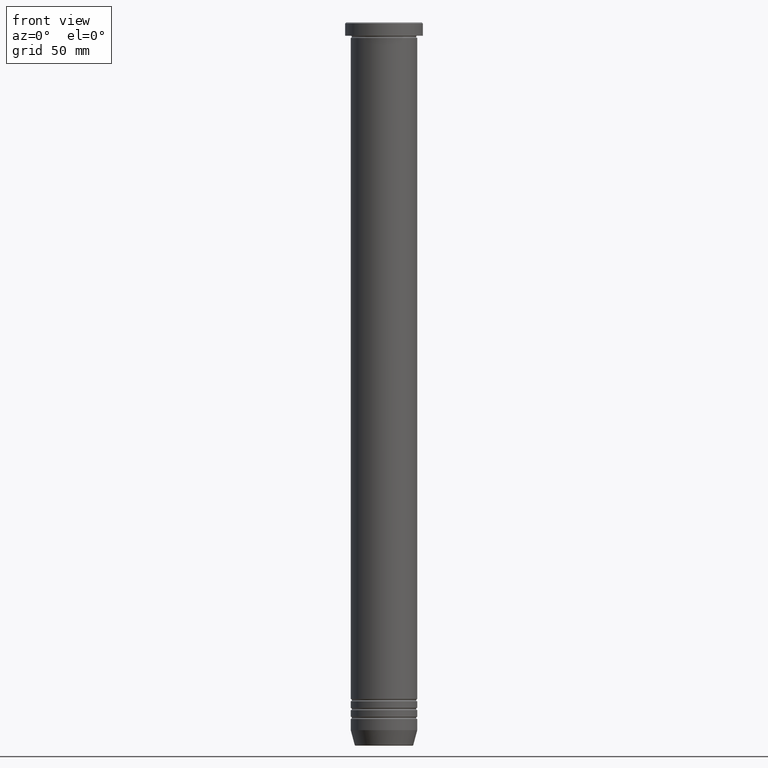
[diagram: clean part render]
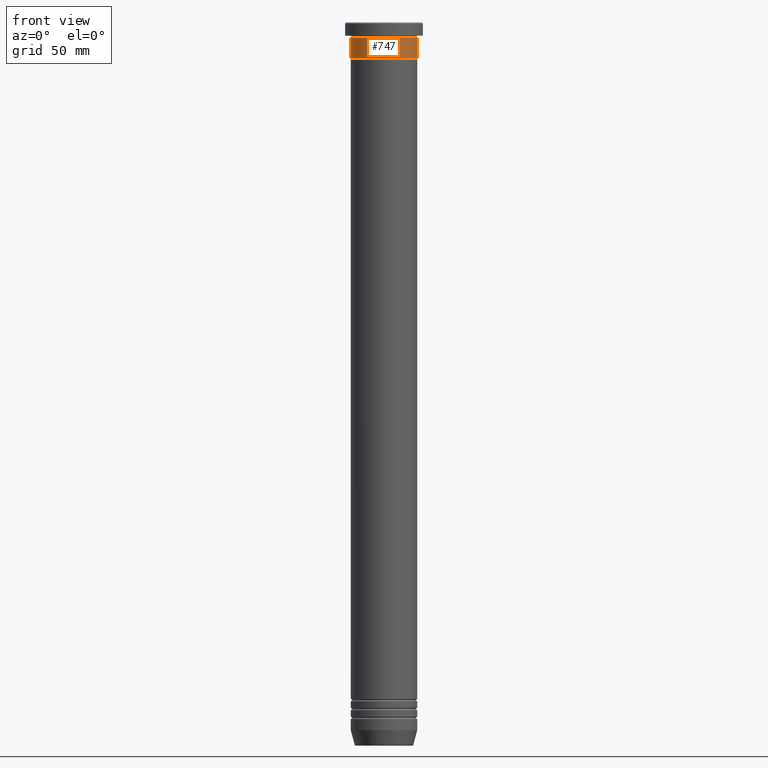
[diagram: same view with one face highlighted and labeled with its STEP entity id]
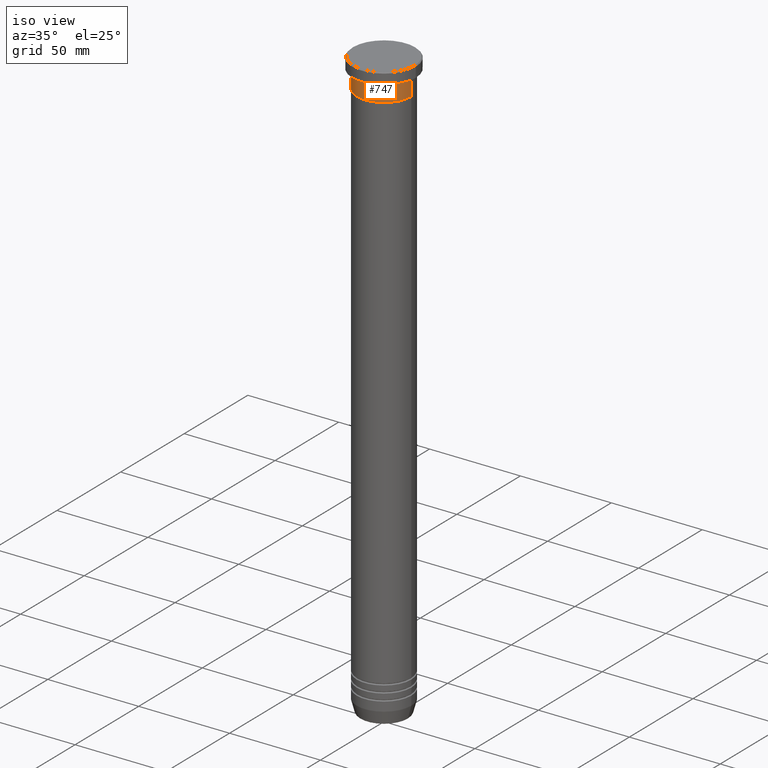
[diagram: same view with one face highlighted and labeled with its STEP entity id]
A machine part, front view. The second image highlights one B-rep face of the part: STEP entity #747.
A second angle (iso view) of the same face is appended — the face is thin or edge-on in the first view.
In plain terms, the highlighted cylindrical surface (edge-blend (fillet) strip) has radius 15 mm, axis along (-0, -0, 1).
Its self-contained STEP definition (entity closure, byte-faithful):
#1 = FACE_OUTER_BOUND ( 'NONE', #1039, .T. ) ;
#42 = DIRECTION ( 'NONE',  ( -0.000000000000000000, -0.000000000000000000, 1.000000000000000000 ) ) ;
#59 = LINE ( 'NONE', #837, #1145 ) ;
#81 = CIRCLE ( 'NONE', #356, 15.00000000000000000 ) ;
#129 = DIRECTION ( 'NONE',  ( -0.000000000000000000, -0.000000000000000000, 1.000000000000000000 ) ) ;
#147 = CARTESIAN_POINT ( 'NONE',  ( -15.00000000000000000, 1.836970198721029589E-15, -6.999999999999999112 ) ) ;
#160 = LINE ( 'NONE', #758, #372 ) ;
#247 = VERTEX_POINT ( 'NONE', #744 ) ;
#251 = CYLINDRICAL_SURFACE ( 'NONE', #866, 15.00000000000000000 ) ;
#264 = DIRECTION ( 'NONE',  ( -0.000000000000000000, -0.000000000000000000, 1.000000000000000000 ) ) ;
#356 = AXIS2_PLACEMENT_3D ( 'NONE', #634, #621, #714 ) ;
#372 = VECTOR ( 'NONE', #669, 1000.000000000000000 ) ;
#439 = DIRECTION ( 'NONE',  ( 1.000000000000000000, 0.000000000000000000, 0.000000000000000000 ) ) ;
#454 = EDGE_CURVE ( 'NONE', #576, #743, #160, .T. ) ;
#456 = CARTESIAN_POINT ( 'NONE',  ( 0.000000000000000000, 0.000000000000000000, 0.000000000000000000 ) ) ;
#548 = CARTESIAN_POINT ( 'NONE',  ( 15.00000000000000000, 0.000000000000000000, -16.00000000000000000 ) ) ;
#576 = VERTEX_POINT ( 'NONE', #548 ) ;
#605 = VERTEX_POINT ( 'NONE', #147 ) ;
#607 = EDGE_CURVE ( 'NONE', #247, #605, #59, .T. ) ;
#621 = DIRECTION ( 'NONE',  ( -0.000000000000000000, -0.000000000000000000, 1.000000000000000000 ) ) ;
#634 = CARTESIAN_POINT ( 'NONE',  ( 0.000000000000000000, 0.000000000000000000, -6.999999999999999112 ) ) ;
#655 = AXIS2_PLACEMENT_3D ( 'NONE', #936, #129, #736 ) ;
#669 = DIRECTION ( 'NONE',  ( -0.000000000000000000, -0.000000000000000000, 1.000000000000000000 ) ) ;
#683 = ORIENTED_EDGE ( 'NONE', *, *, #607, .F. ) ;
#714 = DIRECTION ( 'NONE',  ( 1.000000000000000000, 0.000000000000000000, 0.000000000000000000 ) ) ;
#727 = CIRCLE ( 'NONE', #655, 15.00000000000000000 ) ;
#736 = DIRECTION ( 'NONE',  ( 1.000000000000000000, 0.000000000000000000, 0.000000000000000000 ) ) ;
#743 = VERTEX_POINT ( 'NONE', #876 ) ;
#744 = CARTESIAN_POINT ( 'NONE',  ( -15.00000000000000000, 1.836970198721029589E-15, -16.00000000000000000 ) ) ;
#747 = ADVANCED_FACE ( 'NONE', ( #1 ), #251, .T. ) ;
#758 = CARTESIAN_POINT ( 'NONE',  ( 15.00000000000000000, 0.000000000000000000, 0.000000000000000000 ) ) ;
#801 = EDGE_CURVE ( 'NONE', #605, #743, #81, .T. ) ;
#837 = CARTESIAN_POINT ( 'NONE',  ( -15.00000000000000000, 1.836970198721029589E-15, 0.000000000000000000 ) ) ;
#866 = AXIS2_PLACEMENT_3D ( 'NONE', #456, #264, #439 ) ;
#876 = CARTESIAN_POINT ( 'NONE',  ( 15.00000000000000000, 0.000000000000000000, -6.999999999999999112 ) ) ;
#884 = ORIENTED_EDGE ( 'NONE', *, *, #801, .F. ) ;
#910 = ORIENTED_EDGE ( 'NONE', *, *, #454, .T. ) ;
#913 = EDGE_CURVE ( 'NONE', #247, #576, #727, .T. ) ;
#936 = CARTESIAN_POINT ( 'NONE',  ( 0.000000000000000000, 0.000000000000000000, -16.00000000000000000 ) ) ;
#1010 = ORIENTED_EDGE ( 'NONE', *, *, #913, .T. ) ;
#1039 = EDGE_LOOP ( 'NONE', ( #683, #1010, #910, #884 ) ) ;
#1145 = VECTOR ( 'NONE', #42, 1000.000000000000000 ) ;